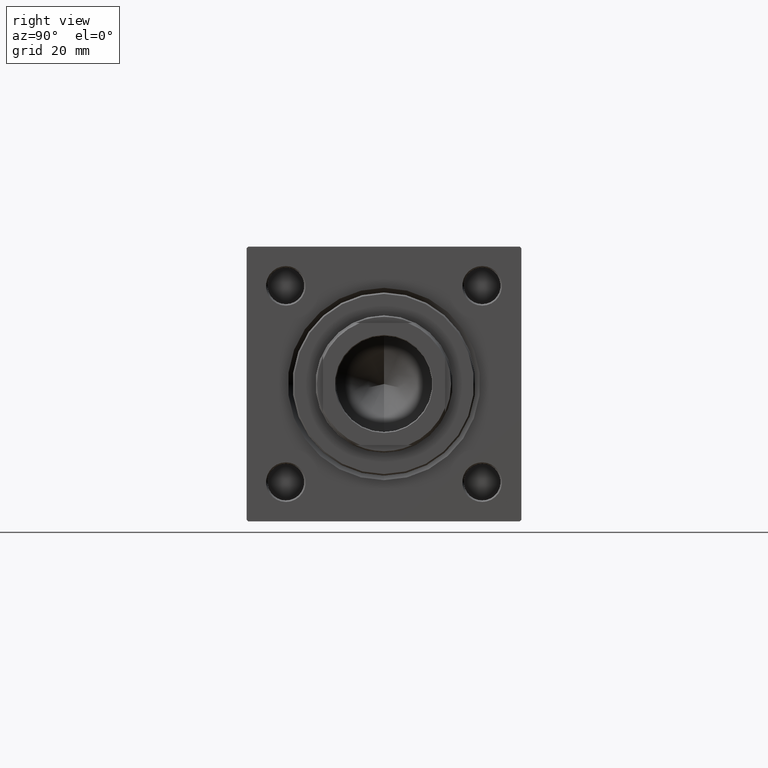
[diagram: clean part render]
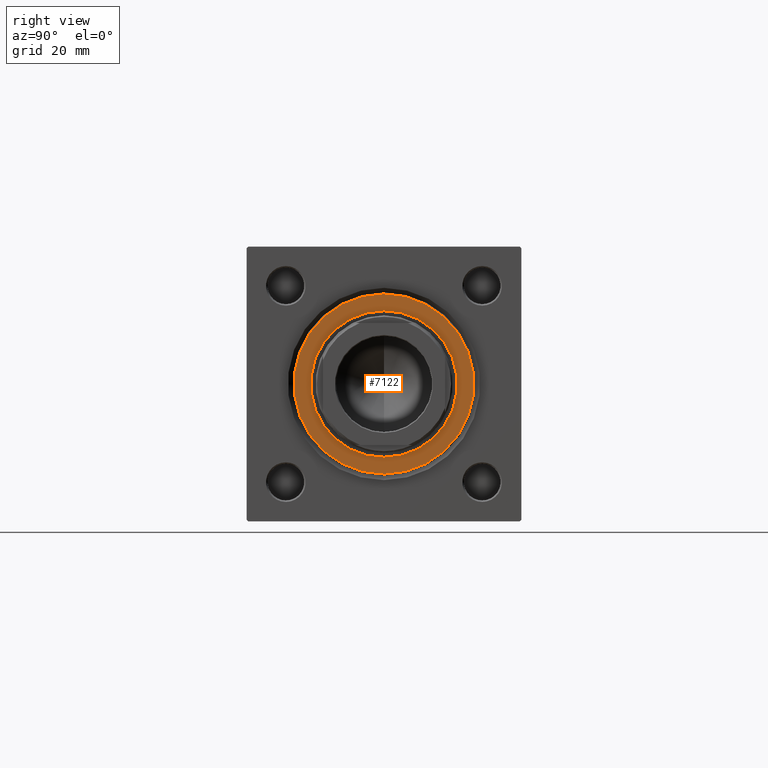
[diagram: same view with one face highlighted and labeled with its STEP entity id]
A machine part, right view. The second image highlights one B-rep face of the part: STEP entity #7122.
In plain terms, the highlighted planar face has unit normal (1, 0, 0).
Its self-contained STEP definition (entity closure, byte-faithful):
#438 = CARTESIAN_POINT ( 'NONE',  ( 0.000000000000000000, 0.000000000000000000, 41.70000000000000284 ) ) ;
#2541 = CARTESIAN_POINT ( 'NONE',  ( -24.00000000000000355, 2.939152317953648289E-15, 41.70000000000000284 ) ) ;
#3077 = VERTEX_POINT ( 'NONE', #7036 ) ;
#3934 = EDGE_LOOP ( 'NONE', ( #28531, #42027 ) ) ;
#4477 = ORIENTED_EDGE ( 'NONE', *, *, #4798, .F. ) ;
#4482 = CARTESIAN_POINT ( 'NONE',  ( 0.000000000000000000, 0.000000000000000000, 41.70000000000000284 ) ) ;
#4798 = EDGE_CURVE ( 'NONE', #45525, #3077, #7319, .T. ) ;
#7036 = CARTESIAN_POINT ( 'NONE',  ( 24.00000000000000355, 0.000000000000000000, 41.70000000000000284 ) ) ;
#7122 = ADVANCED_FACE ( 'NONE', ( #8466, #23669 ), #43676, .T. ) ;
#7319 = CIRCLE ( 'NONE', #8948, 24.00000000000000355 ) ;
#8466 = FACE_BOUND ( 'NONE', #16381, .T. ) ;
#8775 = DIRECTION ( 'NONE',  ( 0.000000000000000000, 0.000000000000000000, 1.000000000000000000 ) ) ;
#8948 = AXIS2_PLACEMENT_3D ( 'NONE', #438, #19437, #42488 ) ;
#11774 = DIRECTION ( 'NONE',  ( 0.000000000000000000, 0.000000000000000000, 1.000000000000000000 ) ) ;
#15246 = AXIS2_PLACEMENT_3D ( 'NONE', #19038, #39791, #44103 ) ;
#15921 = CARTESIAN_POINT ( 'NONE',  ( 29.50000000000000000, 3.643324227463375391E-15, 41.70000000000000284 ) ) ;
#16381 = EDGE_LOOP ( 'NONE', ( #22388, #4477 ) ) ;
#17015 = DIRECTION ( 'NONE',  ( 1.000000000000000000, 0.000000000000000000, 0.000000000000000000 ) ) ;
#18395 = EDGE_CURVE ( 'NONE', #3077, #45525, #33538, .T. ) ;
#19038 = CARTESIAN_POINT ( 'NONE',  ( 0.000000000000000000, 0.000000000000000000, 41.70000000000000284 ) ) ;
#19437 = DIRECTION ( 'NONE',  ( 0.000000000000000000, 0.000000000000000000, 1.000000000000000000 ) ) ;
#22388 = ORIENTED_EDGE ( 'NONE', *, *, #18395, .F. ) ;
#22394 = EDGE_CURVE ( 'NONE', #30879, #41162, #45805, .T. ) ;
#23669 = FACE_OUTER_BOUND ( 'NONE', #3934, .T. ) ;
#25776 = CIRCLE ( 'NONE', #15246, 29.50000000000000000 ) ;
#27464 = DIRECTION ( 'NONE',  ( 1.000000000000000000, 0.000000000000000000, -0.000000000000000000 ) ) ;
#28531 = ORIENTED_EDGE ( 'NONE', *, *, #22394, .T. ) ;
#28802 = AXIS2_PLACEMENT_3D ( 'NONE', #44138, #44386, #17015 ) ;
#30879 = VERTEX_POINT ( 'NONE', #32865 ) ;
#31713 = EDGE_CURVE ( 'NONE', #41162, #30879, #25776, .T. ) ;
#32479 = AXIS2_PLACEMENT_3D ( 'NONE', #35556, #11774, #27464 ) ;
#32865 = CARTESIAN_POINT ( 'NONE',  ( -29.50000000000000000, 0.000000000000000000, 41.70000000000000284 ) ) ;
#33538 = CIRCLE ( 'NONE', #42427, 24.00000000000000355 ) ;
#35556 = CARTESIAN_POINT ( 'NONE',  ( 0.000000000000000000, 0.000000000000000000, 41.70000000000000284 ) ) ;
#39685 = DIRECTION ( 'NONE',  ( 1.000000000000000000, 0.000000000000000000, 0.000000000000000000 ) ) ;
#39791 = DIRECTION ( 'NONE',  ( 0.000000000000000000, 0.000000000000000000, 1.000000000000000000 ) ) ;
#41162 = VERTEX_POINT ( 'NONE', #15921 ) ;
#42027 = ORIENTED_EDGE ( 'NONE', *, *, #31713, .T. ) ;
#42427 = AXIS2_PLACEMENT_3D ( 'NONE', #4482, #8775, #39685 ) ;
#42488 = DIRECTION ( 'NONE',  ( 1.000000000000000000, 0.000000000000000000, 0.000000000000000000 ) ) ;
#43676 = PLANE ( 'NONE',  #32479 ) ;
#44103 = DIRECTION ( 'NONE',  ( 1.000000000000000000, 0.000000000000000000, 0.000000000000000000 ) ) ;
#44138 = CARTESIAN_POINT ( 'NONE',  ( 0.000000000000000000, 0.000000000000000000, 41.70000000000000284 ) ) ;
#44386 = DIRECTION ( 'NONE',  ( 0.000000000000000000, 0.000000000000000000, 1.000000000000000000 ) ) ;
#45525 = VERTEX_POINT ( 'NONE', #2541 ) ;
#45805 = CIRCLE ( 'NONE', #28802, 29.50000000000000000 ) ;